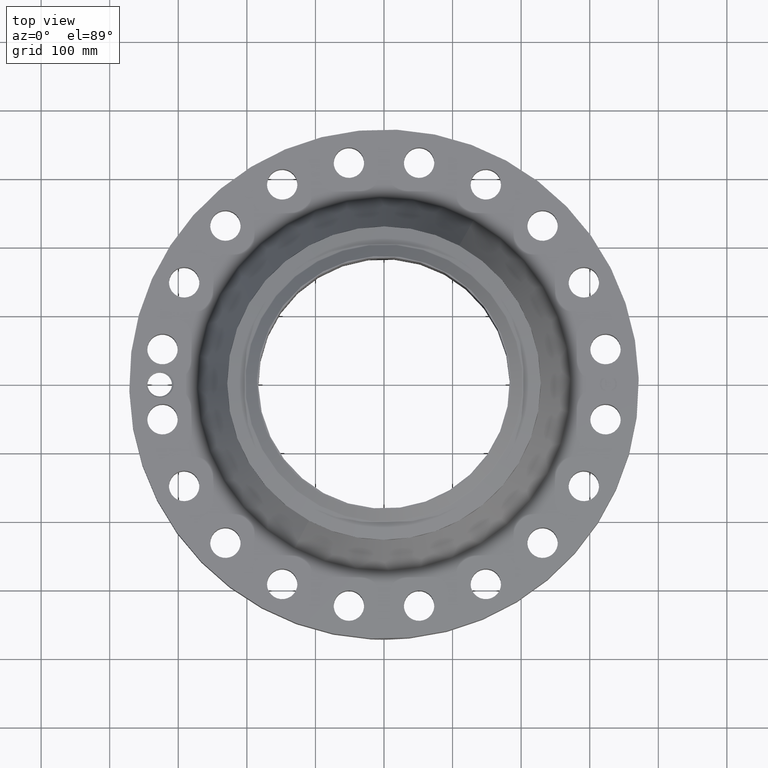
[diagram: clean part render]
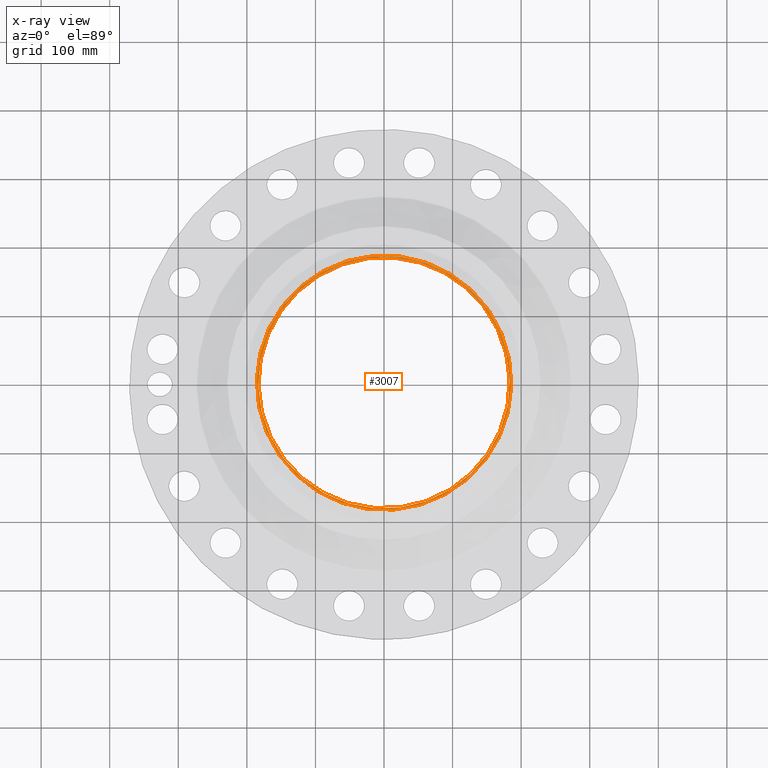
[diagram: x-ray — body ghosted, one internal face saturated and labeled with its STEP entity id]
A machine part, top view, then the same camera in x-ray: the body is ghosted and one INTERNAL B-rep face — a face not visible from any outside direction — is saturated and labeled: STEP entity #3007.
In plain terms, the highlighted planar face has unit normal (0, 0, -1).
Its self-contained STEP definition (entity closure, byte-faithful):
#1586=AXIS2_PLACEMENT_3D('Circle Axis2P3D',#1584,#1585,$) ;
#1654=AXIS2_PLACEMENT_3D('Circle Axis2P3D',#1652,#1653,$) ;
#2983=AXIS2_PLACEMENT_3D('Plane Axis2P3D',#2980,#2981,#2982) ;
#2987=AXIS2_PLACEMENT_3D('Circle Axis2P3D',#2985,#2986,$) ;
#2996=AXIS2_PLACEMENT_3D('Circle Axis2P3D',#2994,#2995,$) ;
#1584=CARTESIAN_POINT('Axis2P3D Location',(0.,0.,7.50000000003)) ;
#1588=CARTESIAN_POINT('Vertex',(3.4609729632,6.33526851431,7.50000000003)) ;
#1590=CARTESIAN_POINT('Vertex',(-3.4609729632,-6.33526851431,7.50000000003)) ;
#1652=CARTESIAN_POINT('Axis2P3D Location',(0.,0.,7.50000000003)) ;
#2980=CARTESIAN_POINT('Axis2P3D Location',(0.,9.00000000004,7.50000000003)) ;
#2985=CARTESIAN_POINT('Axis2P3D Location',(0.,0.,7.50000000003)) ;
#2989=CARTESIAN_POINT('Vertex',(3.49872300561,-6.40436950344,7.50000000003)) ;
#2991=CARTESIAN_POINT('Vertex',(-3.49872300561,6.40436950344,7.50000000003)) ;
#2994=CARTESIAN_POINT('Axis2P3D Location',(0.,0.,7.50000000003)) ;
#1585=DIRECTION('Axis2P3D Direction',(0.,0.,-0.0393700787402)) ;
#1653=DIRECTION('Axis2P3D Direction',(0.,0.,-0.0393700787402)) ;
#2981=DIRECTION('Axis2P3D Direction',(0.,0.,-0.0393700787402)) ;
#2982=DIRECTION('Axis2P3D XDirection',(0.0393700787402,0.,0.)) ;
#2986=DIRECTION('Axis2P3D Direction',(0.,0.,-0.0393700787402)) ;
#2995=DIRECTION('Axis2P3D Direction',(0.,0.,-0.0393700787402)) ;
#3000=ORIENTED_EDGE('',*,*,#2993,.T.) ;
#3001=ORIENTED_EDGE('',*,*,#2998,.T.) ;
#3004=ORIENTED_EDGE('',*,*,#1656,.T.) ;
#3005=ORIENTED_EDGE('',*,*,#1592,.T.) ;
#3006=FACE_BOUND('',#3003,.T.) ;
#3007=ADVANCED_FACE('PartBody',(#3002,#3006),#2984,.F.) ;
#1587=CIRCLE('generated circle',#1586,7.21900000003) ;
#1655=CIRCLE('generated circle',#1654,7.21900000003) ;
#2988=CIRCLE('generated circle',#2987,7.29774015751) ;
#2997=CIRCLE('generated circle',#2996,7.29774015751) ;
#1592=EDGE_CURVE('',#1589,#1591,#1587,.T.) ;
#1656=EDGE_CURVE('',#1591,#1589,#1655,.T.) ;
#2993=EDGE_CURVE('',#2990,#2992,#2988,.F.) ;
#2998=EDGE_CURVE('',#2992,#2990,#2997,.F.) ;
#2999=EDGE_LOOP('',(#3000,#3001)) ;
#3003=EDGE_LOOP('',(#3004,#3005)) ;
#3002=FACE_OUTER_BOUND('',#2999,.T.) ;
#2984=PLANE('',#2983) ;
#1589=VERTEX_POINT('',#1588) ;
#1591=VERTEX_POINT('',#1590) ;
#2990=VERTEX_POINT('',#2989) ;
#2992=VERTEX_POINT('',#2991) ;